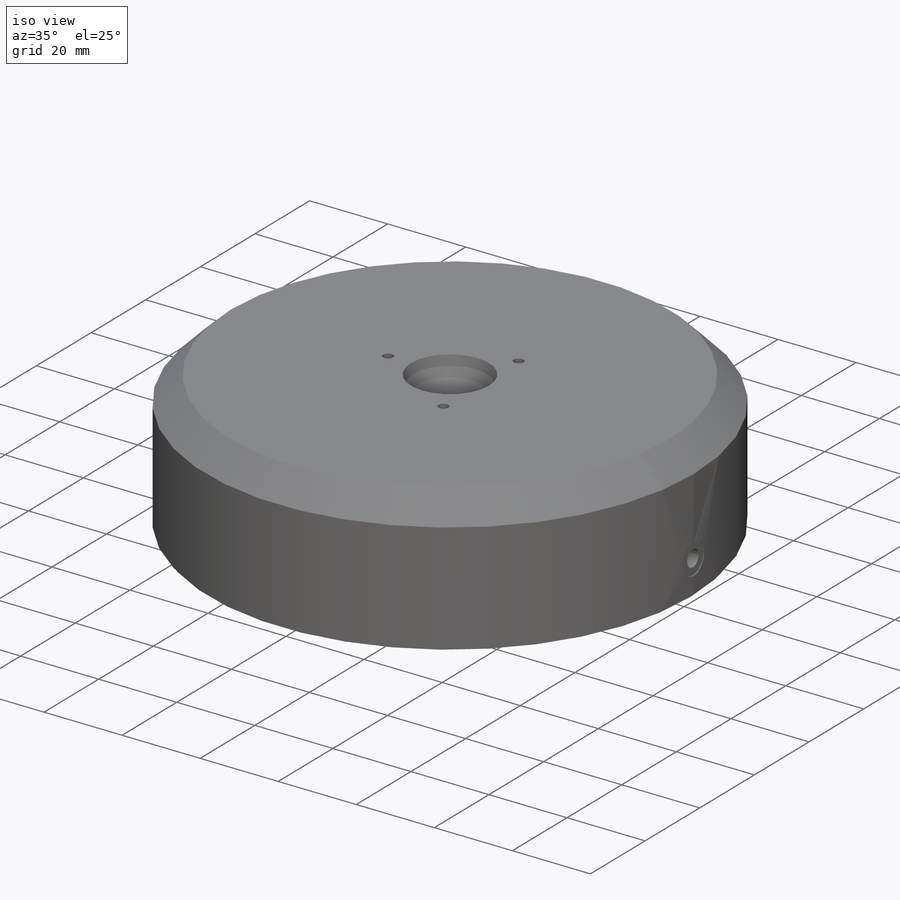
[diagram: iso view]
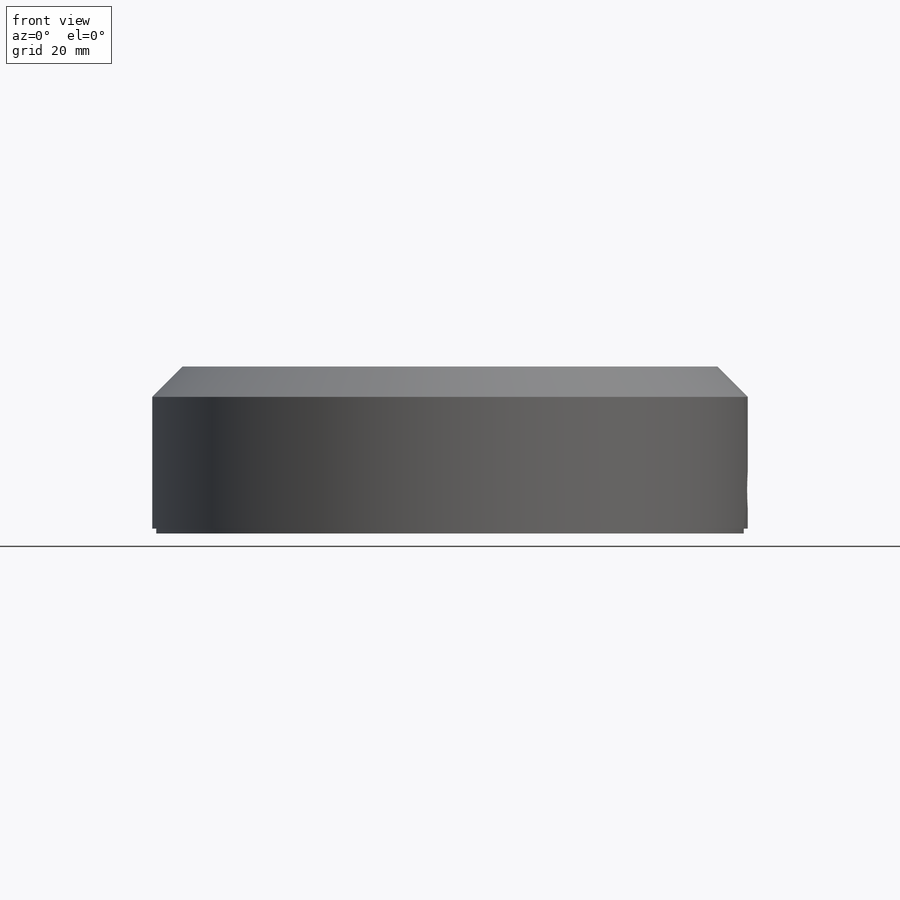
[diagram: front view]
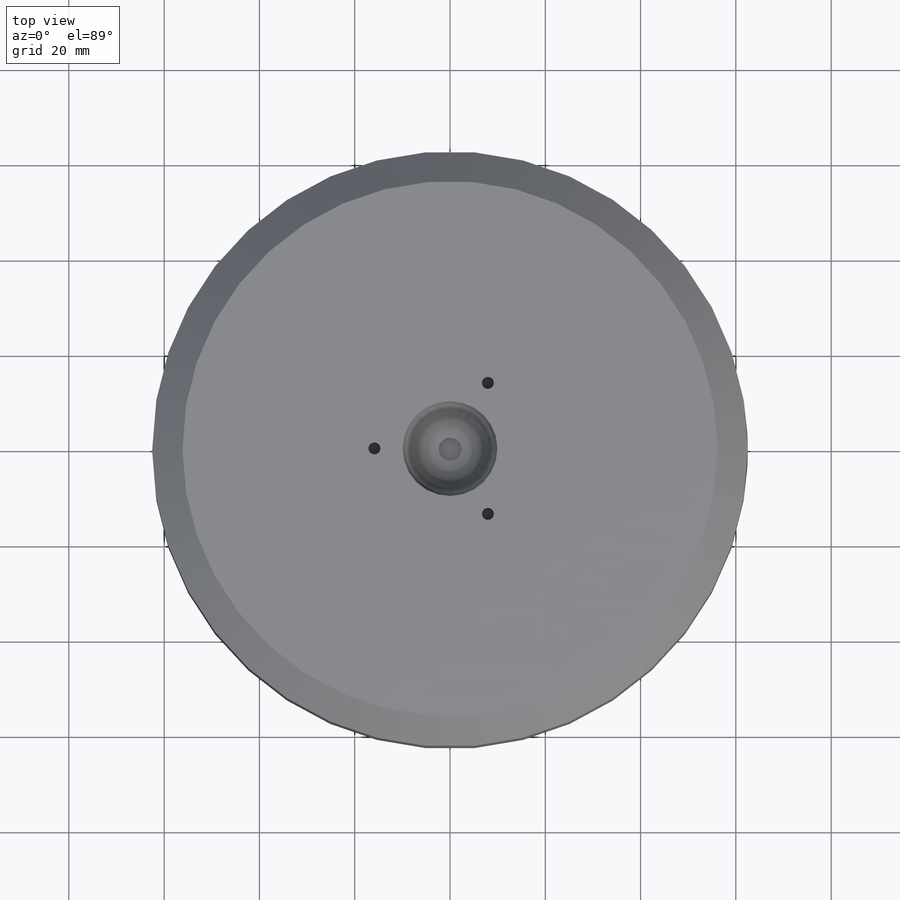
[diagram: top view]
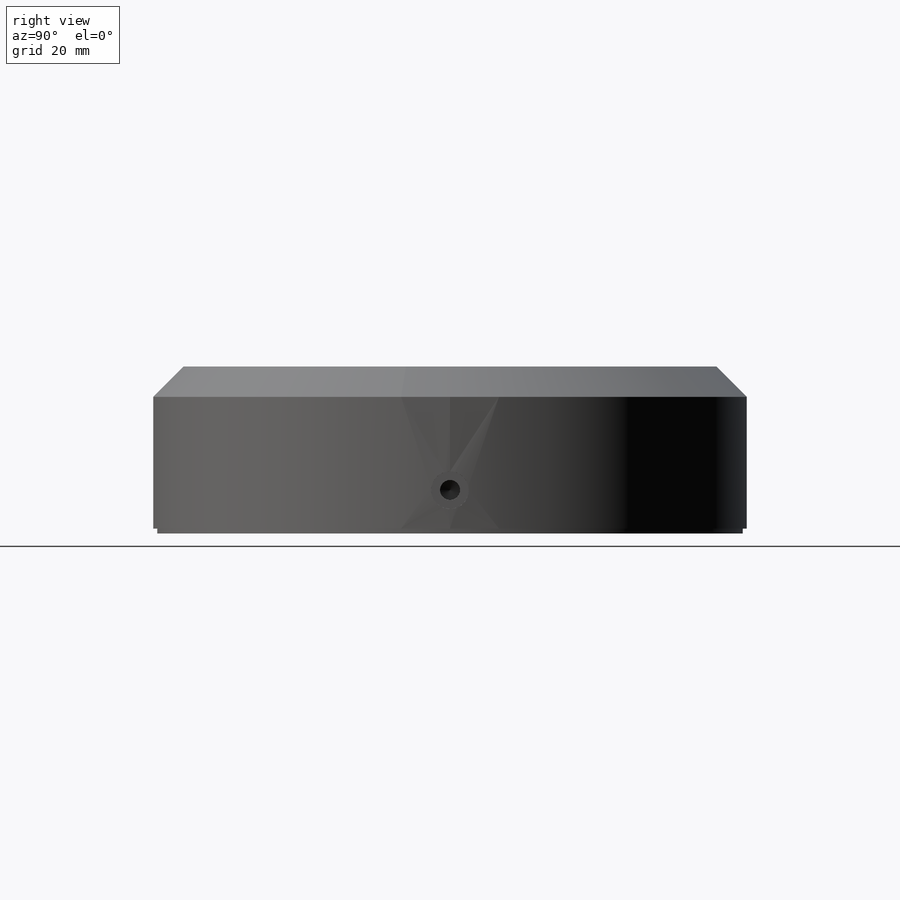
[diagram: right view]
SOLIDWORKS PART (.sldprt)
format: sldprt  version: not decoded by parser v0  size: 266,752 bytes
history: native  units: mm
features: sketch x8, hole x3, thread x2, material x1, revolve x1, pattern_circular x1, extrude x1 (+15 scaffold rows collapsed)
feature tree (32):
  scaffold x15  (default folders/planes/origin — collapsed)
  material  "6061 Alloy"
  sketch  "Sketch1"  dims[c1.D1=10.0076mm c1.D2=9.398mm c1.D3=4.7752mm c1.D4=1.016mm c1.D5=34.0106mm c1.D6=62.4967mm c1.D7=6.35mm c1.D8=17.6276mm c2.D8=45.0deg]
  revolve  "Revolve1"  Angle=360deg
  sketch  "Sketch2"  dims[D1=123.317mm]
  hole  "M5x0.8 Tapped Hole1"  Diameter=4.2mm Depth=46.99mm
  sketch  "3DSketch1"  dims[D1=25.9334mm]
  sketch  "Sketch4"  dims[hole-wizard template sketch: 47 standard entries collapsed; hole parameters kept: c15.Tap Drill Depth=46.99mm c15.D3=~14.816244mm c15.Drill Angle=118.0deg]
  thread  "Hole Thread2"  Diameter=7.62mm  [1 undecoded]
  hole  "M3x0.5 Tapped Hole1"  Diameter=2.5mm Depth=9.652mm
  sketch  "Sketch6"  dims[D1=15.875mm]
  sketch  "Sketch5"  dims[hole-wizard template sketch: 47 standard entries collapsed; hole parameters kept: c15.Tap Drill Depth=9.652mm c15.D3=~14.816244mm c15.Drill Angle=118.0deg]
  thread  "Hole Thread1"  Diameter=6.099988mm  [1 undecoded]
  pattern_circular  "CirPattern1"  Count=3 Angle=120deg
  hole  "CBORE for #00 Binding Head Machine Screw1"  Diameter=1.397mm Depth=6.35mm
  sketch  "3DSketch2"
  sketch  "Sketch7"  dims[hole-wizard template sketch: 28 standard entries collapsed; hole parameters kept: c8.Hole Dia.=1.397mm c8.Hole Depth=6.35mm c8.C'Bore Dia.=7.874mm c8.C'Bore Depth=0.254mm c8.D5=~14.816244mm c8.Drill Angle=118.0deg]
  extrude  "Extrude1"  Depth=1.016mm
decode coverage: 15 of 16 modeling features carry decoded parameters
note: ~ marks probable driven/reference dimensions
note: 2 parameter values undecoded
note: suppression state not decoded; provenance and decode notes live in map.json
